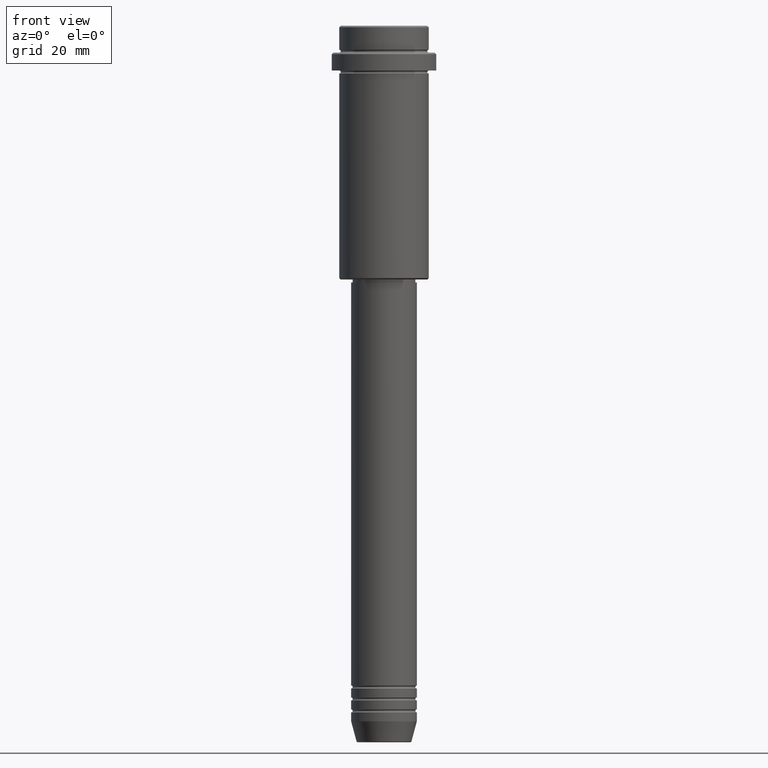
[diagram: clean part render]
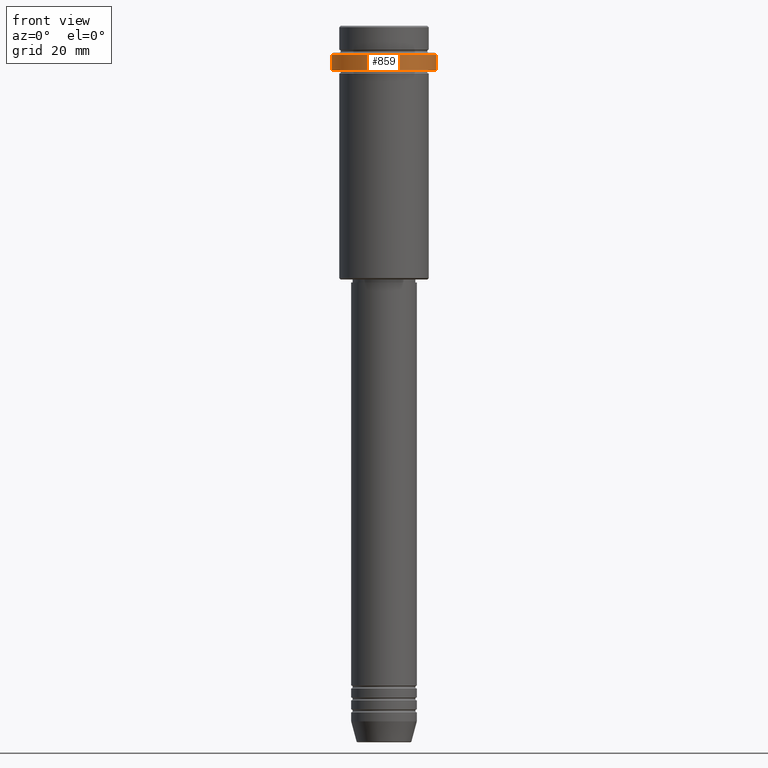
[diagram: same view with one face highlighted and labeled with its STEP entity id]
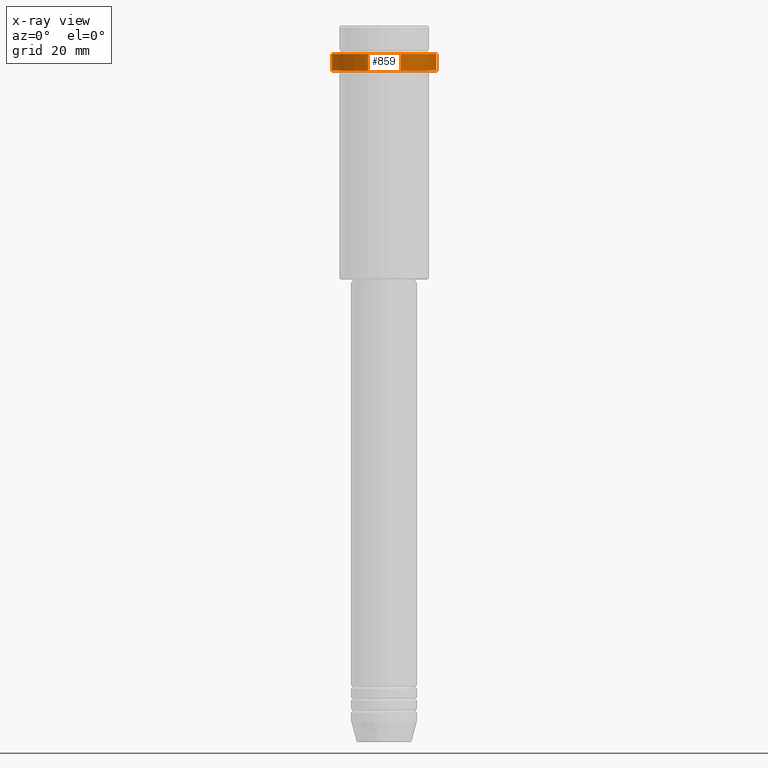
[diagram: x-ray of the same camera — body ghosted, the highlighted face saturated]
A machine part, front view. The second image highlights one B-rep face of the part: STEP entity #859.
The next image is the same camera in x-ray: the body ghosted, the highlighted face saturated — about 0% of this face is hidden behind the body in this view.
In plain terms, the highlighted cylindrical surface (partial cylindrical patch) has radius 17.5 mm, axis along (-0, -0, 1).
Its self-contained STEP definition (entity closure, byte-faithful):
#8 = EDGE_CURVE ( 'NONE', #1253, #846, #393, .T. ) ;
#30 = EDGE_CURVE ( 'NONE', #846, #793, #1075, .T. ) ;
#51 = DIRECTION ( 'NONE',  ( 1.000000000000000000, 0.000000000000000000, 0.000000000000000000 ) ) ;
#54 = VERTEX_POINT ( 'NONE', #870 ) ;
#61 = DIRECTION ( 'NONE',  ( -0.000000000000000000, -0.000000000000000000, 1.000000000000000000 ) ) ;
#115 = ORIENTED_EDGE ( 'NONE', *, *, #503, .F. ) ;
#147 = DIRECTION ( 'NONE',  ( 1.000000000000000000, 0.000000000000000000, 0.000000000000000000 ) ) ;
#174 = CYLINDRICAL_SURFACE ( 'NONE', #536, 17.50000000000000000 ) ;
#181 = FACE_OUTER_BOUND ( 'NONE', #349, .T. ) ;
#324 = DIRECTION ( 'NONE',  ( 1.000000000000000000, 0.000000000000000000, 0.000000000000000000 ) ) ;
#345 = AXIS2_PLACEMENT_3D ( 'NONE', #1183, #825, #51 ) ;
#349 = EDGE_LOOP ( 'NONE', ( #115, #445, #599, #1356 ) ) ;
#368 = CARTESIAN_POINT ( 'NONE',  ( -17.50000000000000000, 2.143131898507868248E-15, 0.000000000000000000 ) ) ;
#384 = EDGE_CURVE ( 'NONE', #793, #54, #916, .T. ) ;
#393 = CIRCLE ( 'NONE', #693, 17.50000000000000000 ) ;
#402 = CARTESIAN_POINT ( 'NONE',  ( -17.50000000000000000, 2.143131898507868248E-15, -15.00000000000000178 ) ) ;
#445 = ORIENTED_EDGE ( 'NONE', *, *, #8, .T. ) ;
#503 = EDGE_CURVE ( 'NONE', #1253, #54, #1015, .T. ) ;
#536 = AXIS2_PLACEMENT_3D ( 'NONE', #615, #61, #147 ) ;
#552 = DIRECTION ( 'NONE',  ( -0.000000000000000000, -0.000000000000000000, 1.000000000000000000 ) ) ;
#584 = CARTESIAN_POINT ( 'NONE',  ( 17.50000000000000000, 0.000000000000000000, -15.00000000000000178 ) ) ;
#599 = ORIENTED_EDGE ( 'NONE', *, *, #30, .T. ) ;
#615 = CARTESIAN_POINT ( 'NONE',  ( 0.000000000000000000, 0.000000000000000000, 0.000000000000000000 ) ) ;
#677 = DIRECTION ( 'NONE',  ( -0.000000000000000000, -0.000000000000000000, 1.000000000000000000 ) ) ;
#693 = AXIS2_PLACEMENT_3D ( 'NONE', #1395, #677, #324 ) ;
#793 = VERTEX_POINT ( 'NONE', #864 ) ;
#825 = DIRECTION ( 'NONE',  ( 0.000000000000000000, 0.000000000000000000, -1.000000000000000000 ) ) ;
#846 = VERTEX_POINT ( 'NONE', #584 ) ;
#859 = ADVANCED_FACE ( 'NONE', ( #181 ), #174, .T. ) ;
#864 = CARTESIAN_POINT ( 'NONE',  ( 17.50000000000000000, 0.000000000000000000, -9.499999999999973355 ) ) ;
#870 = CARTESIAN_POINT ( 'NONE',  ( -17.50000000000000000, 2.143131898507868248E-15, -9.499999999999973355 ) ) ;
#916 = CIRCLE ( 'NONE', #345, 17.50000000000000000 ) ;
#978 = DIRECTION ( 'NONE',  ( -0.000000000000000000, -0.000000000000000000, 1.000000000000000000 ) ) ;
#1015 = LINE ( 'NONE', #368, #1036 ) ;
#1036 = VECTOR ( 'NONE', #552, 1000.000000000000000 ) ;
#1075 = LINE ( 'NONE', #1305, #1182 ) ;
#1182 = VECTOR ( 'NONE', #978, 1000.000000000000000 ) ;
#1183 = CARTESIAN_POINT ( 'NONE',  ( 0.000000000000000000, 0.000000000000000000, -9.499999999999973355 ) ) ;
#1253 = VERTEX_POINT ( 'NONE', #402 ) ;
#1305 = CARTESIAN_POINT ( 'NONE',  ( 17.50000000000000000, 0.000000000000000000, 0.000000000000000000 ) ) ;
#1356 = ORIENTED_EDGE ( 'NONE', *, *, #384, .T. ) ;
#1395 = CARTESIAN_POINT ( 'NONE',  ( 0.000000000000000000, 0.000000000000000000, -15.00000000000000178 ) ) ;